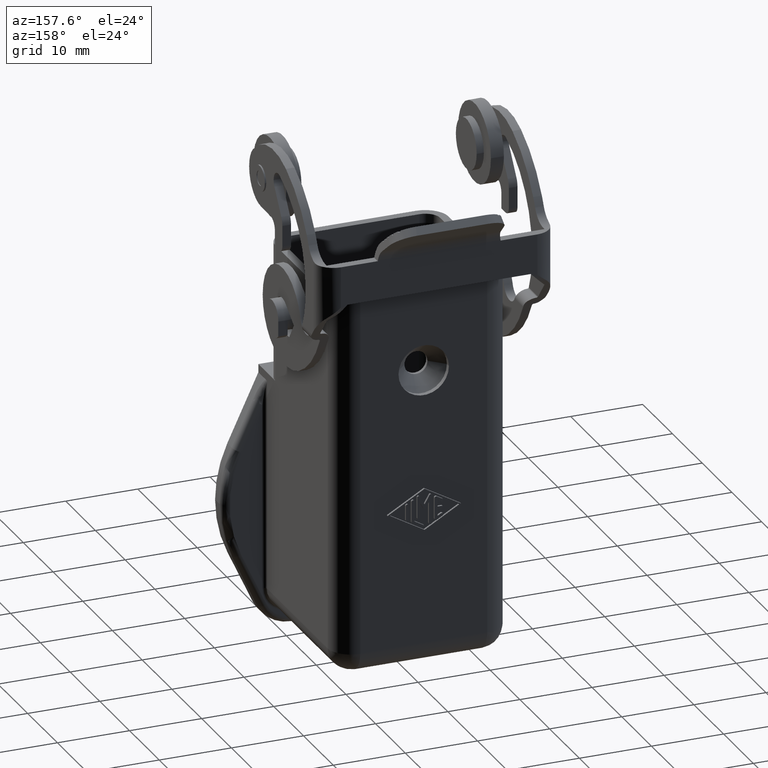
[diagram: clean part render]
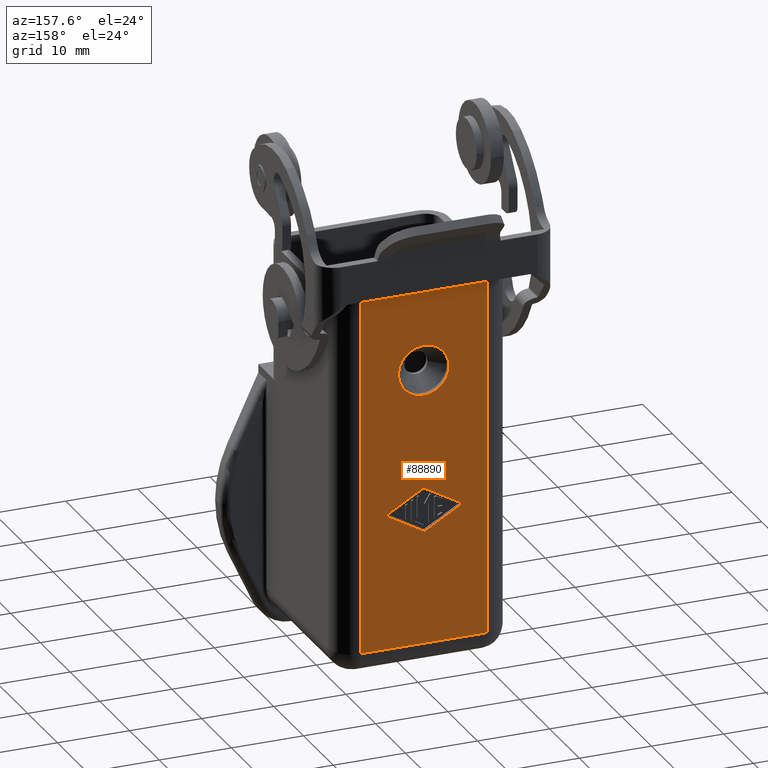
[diagram: same view with one face highlighted and labeled with its STEP entity id]
A machine part, auxiliary view. The second image highlights one B-rep face of the part: STEP entity #88890.
In plain terms, the highlighted planar face has unit normal (0, 1, 0).
Its self-contained STEP definition (entity closure, byte-faithful):
#74000=CARTESIAN_POINT('',(41.923367,53.655443,26.));
#74010=VERTEX_POINT('',#74000);
#74040=CARTESIAN_POINT('',(0.,53.655443,26.));
#74050=DIRECTION('',(1.,-0.,-0.));
#74060=VECTOR('',#74050,1.);
#74070=LINE('',#74040,#74060);
#74080=CARTESIAN_POINT('',(59.523367,53.655443,26.));
#74090=VERTEX_POINT('',#74080);
#74100=EDGE_CURVE('',#74010,#74090,#74070,.T.);
#87840=CARTESIAN_POINT('',(41.48336385,53.655443,27.23250315));
#87850=DIRECTION('',(0.,1.,0.));
#87860=DIRECTION('',(1.,-0.,0.));
#87870=AXIS2_PLACEMENT_3D('',#87840,#87850,#87860);
#87880=PLANE('',#87870);
#87890=ORIENTED_EDGE('',*,*,#74100,.T.);
#87900=CARTESIAN_POINT('',(41.923367,53.655443,26.));
#87910=DIRECTION('',(0.,0.,-1.));
#87920=VECTOR('',#87910,1.);
#87930=LINE('',#87900,#87920);
#87940=CARTESIAN_POINT('',(41.923367,53.655443,-23.3));
#87950=VERTEX_POINT('',#87940);
#87960=EDGE_CURVE('',#74010,#87950,#87930,.T.);
#87970=ORIENTED_EDGE('',*,*,#87960,.F.);
#87980=CARTESIAN_POINT('',(41.48336385,53.655443,-23.3));
#87990=DIRECTION('',(1.,0.,0.));
#88000=VECTOR('',#87990,1.);
#88010=LINE('',#87980,#88000);
#88020=CARTESIAN_POINT('',(59.523367,53.655443,-23.3));
#88030=VERTEX_POINT('',#88020);
#88040=EDGE_CURVE('',#87950,#88030,#88010,.T.);
#88050=ORIENTED_EDGE('',*,*,#88040,.F.);
#88060=CARTESIAN_POINT('',(59.523367,53.655443,-23.3));
#88070=DIRECTION('',(0.,0.,1.));
#88080=VECTOR('',#88070,1.);
#88090=LINE('',#88060,#88080);
#88100=EDGE_CURVE('',#88030,#74090,#88090,.T.);
#88110=ORIENTED_EDGE('',*,*,#88100,.F.);
#88120=EDGE_LOOP('',(#88110,#88050,#87970,#87890));
#88130=FACE_OUTER_BOUND('',#88120,.T.);
#88140=CARTESIAN_POINT('',(0.,53.655443,21.7634809615379));
#88150=DIRECTION('',(-0.866185586048605,0.,0.499722453489569));
#88160=VECTOR('',#88150,1.);
#88170=LINE('',#88140,#88160);
#88180=CARTESIAN_POINT('',(50.723367,53.655443,-7.49999999999998));
#88190=VERTEX_POINT('',#88180);
#88200=CARTESIAN_POINT('',(45.6735058349151,53.655443,-4.58661855860493)
);
#88210=VERTEX_POINT('',#88200);
#88220=EDGE_CURVE('',#88190,#88210,#88170,.T.);
#88230=ORIENTED_EDGE('',*,*,#88220,.F.);
#88240=CARTESIAN_POINT('',(45.723478080264,53.655443,-4.49999999999999))
;
#88250=DIRECTION('',(0.,1.,0.));
#88260=DIRECTION('',(1.,-0.,0.));
#88270=AXIS2_PLACEMENT_3D('',#88240,#88250,#88260);
#88280=CIRCLE('',#88270,0.099999999999999);
#88290=CARTESIAN_POINT('',(45.623478080264,53.655443,-4.49999999999999))
;
#88300=VERTEX_POINT('',#88290);
#88310=EDGE_CURVE('',#88210,#88300,#88280,.T.);
#88320=ORIENTED_EDGE('',*,*,#88310,.F.);
#88330=CARTESIAN_POINT('',(45.673505834915,53.655443,-4.4133814413951));
#88340=VERTEX_POINT('',#88330);
#88350=EDGE_CURVE('',#88300,#88340,#88280,.T.);
#88360=ORIENTED_EDGE('',*,*,#88350,.F.);
#88370=CARTESIAN_POINT('',(0.,53.655443,-30.763480961539));
#88380=DIRECTION('',(0.866185586048597,0.,0.499722453489584));
#88390=VECTOR('',#88380,1.);
#88400=LINE('',#88370,#88390);
#88410=CARTESIAN_POINT('',(50.723367,53.655443,-1.50000000000001));
#88420=VERTEX_POINT('',#88410);
#88430=EDGE_CURVE('',#88340,#88420,#88400,.T.);
#88440=ORIENTED_EDGE('',*,*,#88430,.F.);
#88450=CARTESIAN_POINT('',(0.,53.655443,27.763480961539));
#88460=DIRECTION('',(0.866185586048597,0.,-0.499722453489584));
#88470=VECTOR('',#88460,1.);
#88480=LINE('',#88450,#88470);
#88490=CARTESIAN_POINT('',(55.7732281650849,53.655443,-4.41338144139518)
);
#88500=VERTEX_POINT('',#88490);
#88510=EDGE_CURVE('',#88420,#88500,#88480,.T.);
#88520=ORIENTED_EDGE('',*,*,#88510,.F.);
#88530=CARTESIAN_POINT('',(55.723255919736,53.655443,-4.49999999999999))
;
#88540=DIRECTION('',(0.,1.,0.));
#88550=DIRECTION('',(1.,-0.,0.));
#88560=AXIS2_PLACEMENT_3D('',#88530,#88540,#88550);
#88570=CIRCLE('',#88560,0.0999999999999209);
#88580=CARTESIAN_POINT('',(55.8232559197359,53.655443,-4.49999999999999)
);
#88590=VERTEX_POINT('',#88580);
#88600=EDGE_CURVE('',#88500,#88590,#88570,.T.);
#88610=ORIENTED_EDGE('',*,*,#88600,.F.);
#88620=CARTESIAN_POINT('',(55.7732281650849,53.655443,-4.58661855860491)
);
#88630=VERTEX_POINT('',#88620);
#88640=EDGE_CURVE('',#88590,#88630,#88570,.T.);
#88650=ORIENTED_EDGE('',*,*,#88640,.F.);
#88660=CARTESIAN_POINT('',(0.,53.655443,-36.7634809615378));
#88670=DIRECTION('',(-0.866185586048605,0.,-0.499722453489569));
#88680=VECTOR('',#88670,1.);
#88690=LINE('',#88660,#88680);
#88700=EDGE_CURVE('',#88630,#88190,#88690,.T.);
#88710=ORIENTED_EDGE('',*,*,#88700,.F.);
#88720=EDGE_LOOP('',(#88710,#88650,#88610,#88520,#88440,#88360,#88320,
#88230));
#88730=FACE_BOUND('',#88720,.T.);
#88740=CARTESIAN_POINT('',(50.723367,53.655443,15.));
#88750=DIRECTION('',(0.,-1.,0.));
#88760=DIRECTION('',(-1.,-0.,0.));
#88770=AXIS2_PLACEMENT_3D('',#88740,#88750,#88760);
#88780=CIRCLE('',#88770,3.5);
#88790=CARTESIAN_POINT('',(54.223367,53.655443,15.));
#88800=VERTEX_POINT('',#88790);
#88810=CARTESIAN_POINT('',(47.223367,53.655443,15.));
#88820=VERTEX_POINT('',#88810);
#88830=EDGE_CURVE('',#88800,#88820,#88780,.T.);
#88840=ORIENTED_EDGE('',*,*,#88830,.T.);
#88850=EDGE_CURVE('',#88820,#88800,#88780,.T.);
#88860=ORIENTED_EDGE('',*,*,#88850,.T.);
#88870=EDGE_LOOP('',(#88860,#88840));
#88880=FACE_BOUND('',#88870,.T.);
#88890=ADVANCED_FACE('',(#88130,#88730,#88880),#87880,.T.);